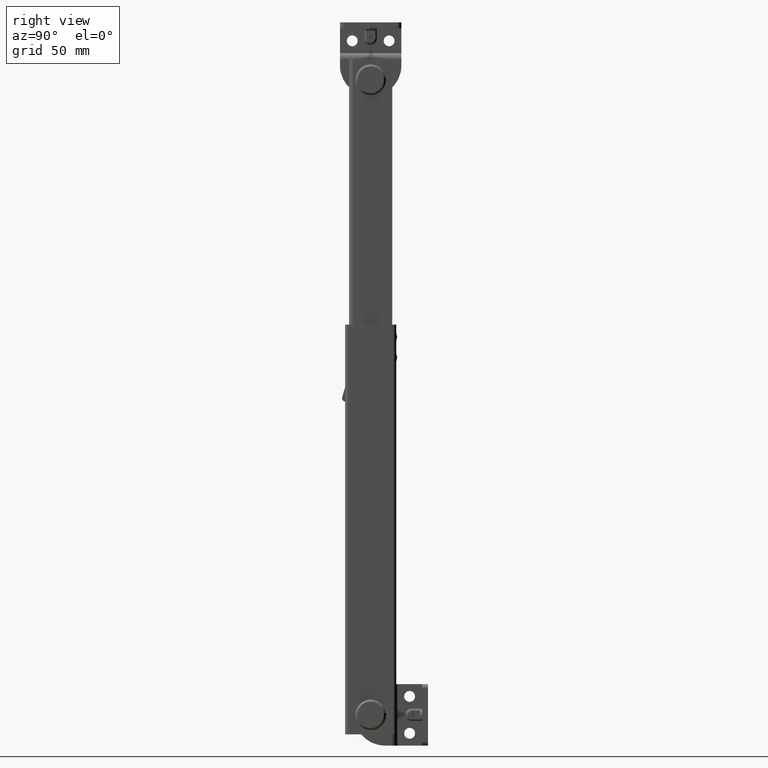
[diagram: clean part render]
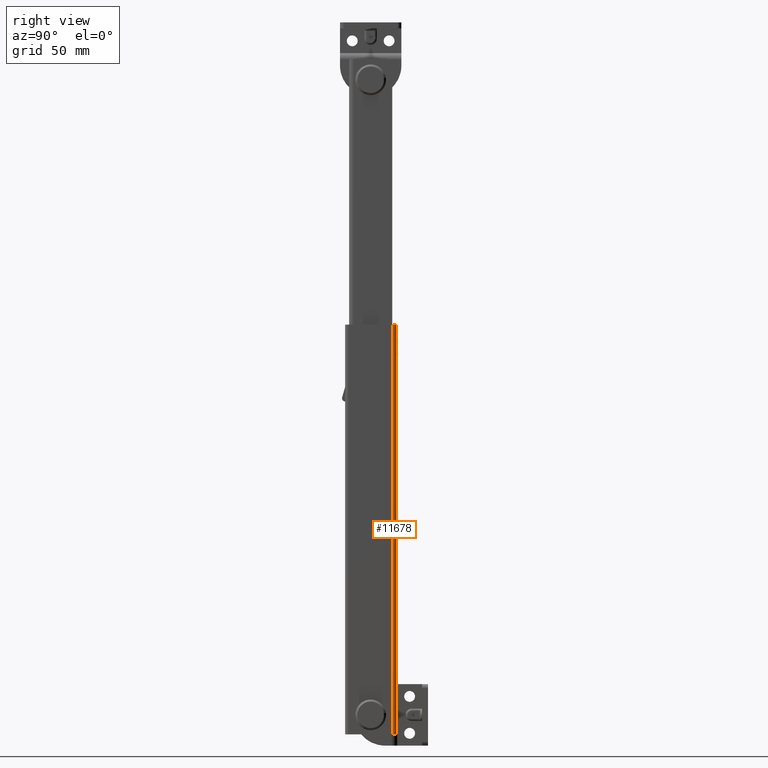
[diagram: same view with one face highlighted and labeled with its STEP entity id]
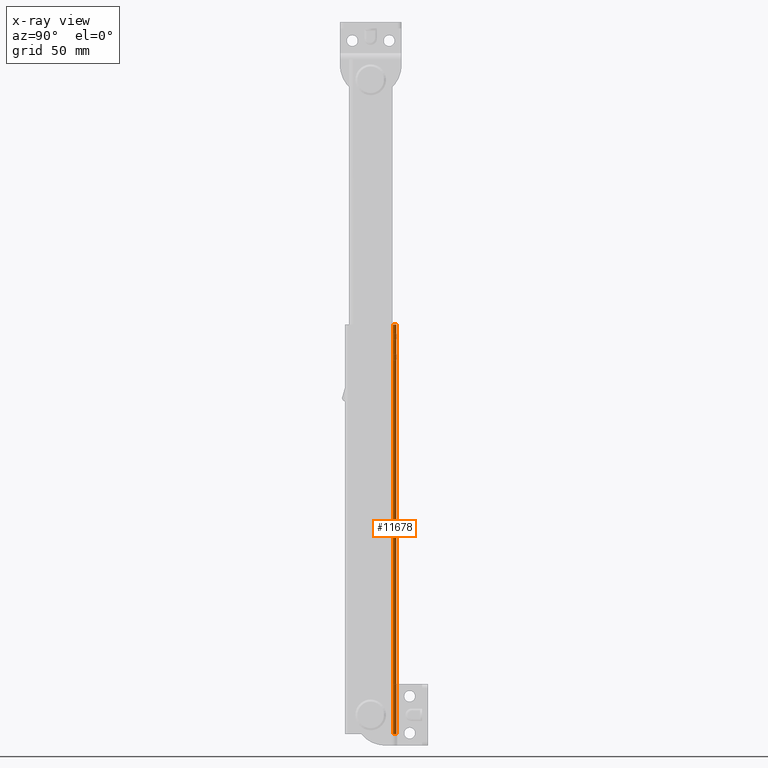
[diagram: x-ray of the same camera — body ghosted, the highlighted face saturated]
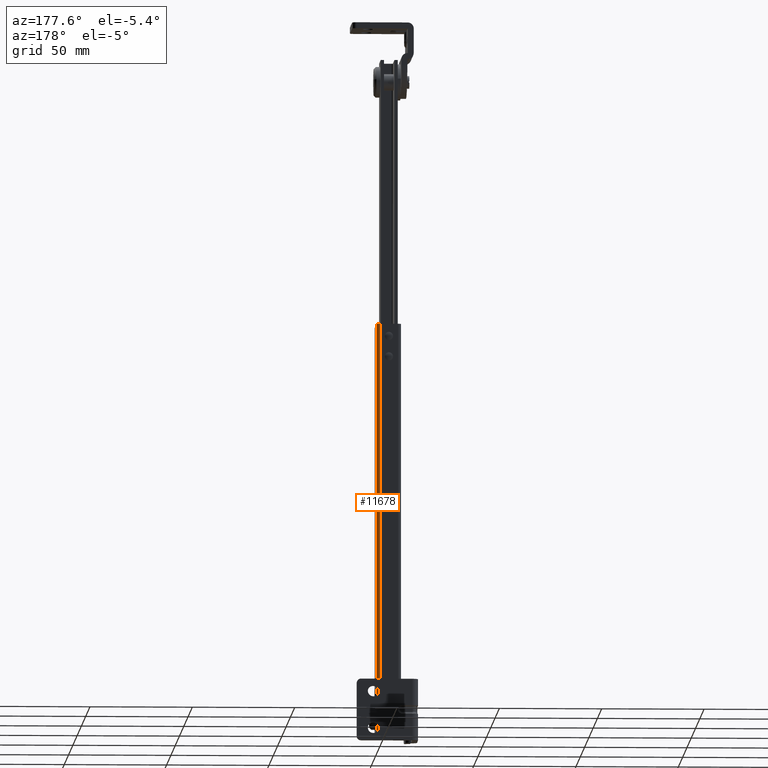
[diagram: same view with one face highlighted and labeled with its STEP entity id]
A machine part, right view. The second image highlights one B-rep face of the part: STEP entity #11678.
The next image is the same camera in x-ray: the body ghosted, the highlighted face saturated — about 0% of this face is hidden behind the body in this view.
A second angle (auxiliary view) of the same face is appended — the face is thin or edge-on in the first view.
In plain terms, the highlighted face is a freeform B-spline surface patch.
Its self-contained STEP definition (entity closure, byte-faithful):
#11394=CARTESIAN_POINT('',(-0.000006000000008,10.900002000000001,190.500000000000000));
#11395=VERTEX_POINT('',#11394);
#11401=CARTESIAN_POINT('',(-1.597476178661950,12.500000000000000,190.500000000000000));
#11402=VERTEX_POINT('',#11401);
#11403=CARTESIAN_POINT('',(-1.597476178661951,12.500000000000000,190.500000000000000));
#11404=CARTESIAN_POINT('',(-0.000006000000000,12.497474175502171,190.500000000000030));
#11405=CARTESIAN_POINT('',(-0.000006000000000,10.900002000000001,190.500000000000000));
#11413=(BOUNDED_CURVE()B_SPLINE_CURVE(2,(#11403,#11404,#11405),.UNSPECIFIED.,.F.,.U.)CURVE()GEOMETRIC_REPRESENTATION_ITEM()QUASI_UNIFORM_CURVE()RATIONAL_B_SPLINE_CURVE((1.0,0.707665577210126,1.0))REPRESENTATION_ITEM(''));
#11414=EDGE_CURVE('',#11402,#11395,#11413,.T.);
#11546=CARTESIAN_POINT('',(-1.597476178661950,12.500000000000000,-9.500000000000000));
#11547=VERTEX_POINT('',#11546);
#11553=CARTESIAN_POINT('',(-0.000006000000008,10.900002000000001,-9.500000000000000));
#11554=VERTEX_POINT('',#11553);
#11555=CARTESIAN_POINT('',(-1.597476178661951,12.500000000000000,-9.500000000000000));
#11556=CARTESIAN_POINT('',(-0.000006000000000,12.497474175502171,-9.500000000000000));
#11557=CARTESIAN_POINT('',(-0.000006000000000,10.900002000000001,-9.500000000000000));
#11565=(BOUNDED_CURVE()B_SPLINE_CURVE(2,(#11555,#11556,#11557),.UNSPECIFIED.,.F.,.U.)CURVE()GEOMETRIC_REPRESENTATION_ITEM()QUASI_UNIFORM_CURVE()RATIONAL_B_SPLINE_CURVE((1.0,0.707665577210126,1.0))REPRESENTATION_ITEM(''));
#11566=EDGE_CURVE('',#11547,#11554,#11565,.T.);
#11650=CARTESIAN_POINT('',(-1.641889117292598,12.499453719960890,-14.500000000000011));
#11651=CARTESIAN_POINT('',(-1.641889117292598,12.499453719960890,195.625000000000000));
#11652=CARTESIAN_POINT('',(0.119831681936126,12.545586002636302,-14.500000000000012));
#11653=CARTESIAN_POINT('',(0.119831681936126,12.545586002636302,195.625000000000090));
#11654=CARTESIAN_POINT('',(-0.003958065916047,10.787614313368634,-14.500000000000009));
#11655=CARTESIAN_POINT('',(-0.003958065916047,10.787614313368634,195.625000000000000));
#11663=(BOUNDED_SURFACE()B_SPLINE_SURFACE(1,2,((#11650,#11652,#11654),(#11651,#11653,#11655)),.UNSPECIFIED.,.F.,.F.,.U.)B_SPLINE_SURFACE_WITH_KNOTS((2,2),(3,3),(0.0,210.125000000000110),(0.0,2.833678499369941),.UNSPECIFIED.)GEOMETRIC_REPRESENTATION_ITEM()RATIONAL_B_SPLINE_SURFACE(((1.0,0.670961516213560,0.996358443457637),(1.0,0.670961516213560,0.996358443457637)))REPRESENTATION_ITEM('')SURFACE());
#11664=ORIENTED_EDGE('',*,*,#11414,.T.);
#11665=CARTESIAN_POINT('',(-0.000006000000008,10.900002000000001,-9.500000000000000));
#11666=CARTESIAN_POINT('',(-0.000006000000008,10.900002000000001,190.500000000000000));
#11667=QUASI_UNIFORM_CURVE('',1,(#11665,#11666),.UNSPECIFIED.,.F.,.U.);
#11668=EDGE_CURVE('',#11554,#11395,#11667,.T.);
#11669=ORIENTED_EDGE('',*,*,#11668,.F.);
#11670=ORIENTED_EDGE('',*,*,#11566,.F.);
#11671=CARTESIAN_POINT('',(-1.597476178661950,12.500000000000000,-9.500000000000000));
#11672=CARTESIAN_POINT('',(-1.597476178661950,12.500000000000000,190.500000000000000));
#11673=QUASI_UNIFORM_CURVE('',1,(#11671,#11672),.UNSPECIFIED.,.F.,.U.);
#11674=EDGE_CURVE('',#11547,#11402,#11673,.T.);
#11675=ORIENTED_EDGE('',*,*,#11674,.T.);
#11676=EDGE_LOOP('',(#11664,#11669,#11670,#11675));
#11677=FACE_OUTER_BOUND('',#11676,.T.);
#11678=ADVANCED_FACE('',(#11677),#11663,.T.);